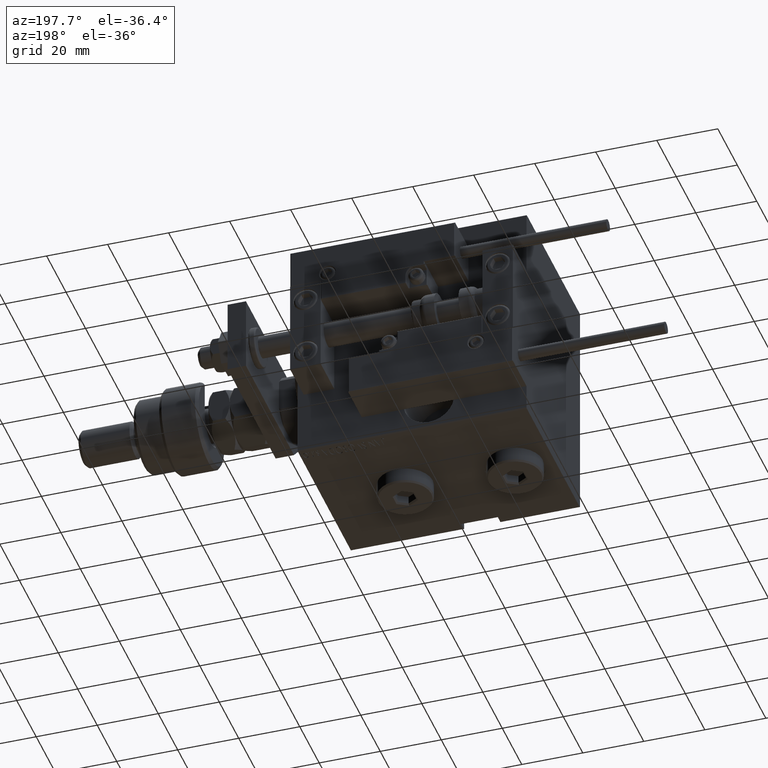
[diagram: clean part render]
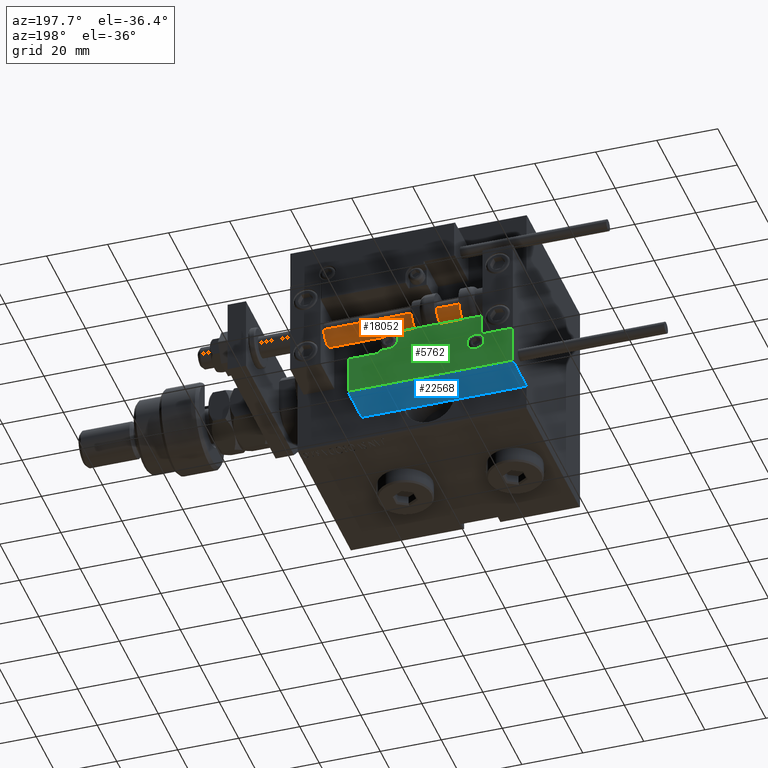
[diagram: same view with three faces highlighted in distinct colors, each labeled with its STEP entity id]
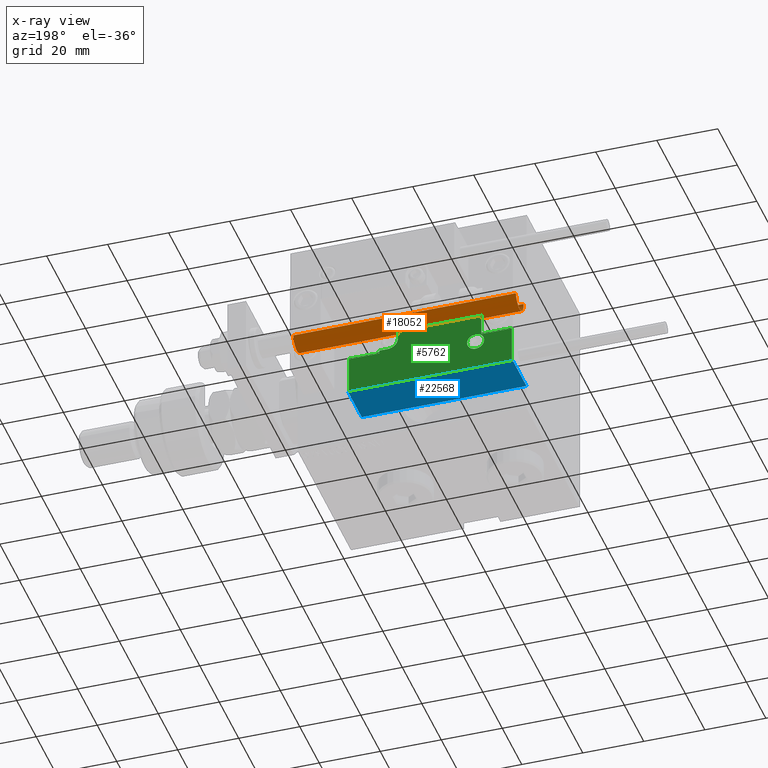
[diagram: x-ray of the same camera — body ghosted, the three highlighted faces saturated]
A machine part, auxiliary view with three faces highlighted in distinct colors.
The next image is the same camera in x-ray (body ghosted, the three faces saturated) — at least one of them is partly hidden behind the body in this view.
Their STEP definitions:

[orange] entity #18052 — the highlighted cylindrical surface (edge-blend (fillet) strip) has radius 4 mm, axis along (1, 0, -0).
#3 = DIRECTION ( 'NONE',  ( -0.000000000000000000, -0.000000000000000000, -1.000000000000000000 ) ) ;
#1456 = DIRECTION ( 'NONE',  ( 1.000000000000000000, 0.000000000000000000, 0.000000000000000000 ) ) ;
#4489 = DIRECTION ( 'NONE',  ( 1.000000000000000000, 0.000000000000000000, 0.000000000000000000 ) ) ;
#10339 = AXIS2_PLACEMENT_3D ( 'NONE', #38742, #18610, #1456 ) ;
#11839 = VERTEX_POINT ( 'NONE', #49486 ) ;
#14315 = CARTESIAN_POINT ( 'NONE',  ( -4.000000000000000000, 0.000000000000000000, 2.000000000000029310 ) ) ;
#15033 = VERTEX_POINT ( 'NONE', #14315 ) ;
#16069 = AXIS2_PLACEMENT_3D ( 'NONE', #52611, #53140, #24621 ) ;
#18052 = ADVANCED_FACE ( 'NONE', ( #31971 ), #40937, .T. ) ;
#18610 = DIRECTION ( 'NONE',  ( 0.000000000000000000, 0.000000000000000000, 1.000000000000000000 ) ) ;
#20895 = EDGE_CURVE ( 'NONE', #11839, #46440, #30188, .T. ) ;
#23227 = DIRECTION ( 'NONE',  ( -0.000000000000000000, -0.000000000000000000, -1.000000000000000000 ) ) ;
#24621 = DIRECTION ( 'NONE',  ( -1.000000000000000000, 0.000000000000000000, 0.000000000000000000 ) ) ;
#25042 = AXIS2_PLACEMENT_3D ( 'NONE', #25456, #38976, #4489 ) ;
#25456 = CARTESIAN_POINT ( 'NONE',  ( 0.000000000000000000, 0.000000000000000000, 2.000000000000029310 ) ) ;
#26416 = ORIENTED_EDGE ( 'NONE', *, *, #47437, .T. ) ;
#26777 = LINE ( 'NONE', #48513, #34521 ) ;
#27693 = CIRCLE ( 'NONE', #10339, 4.000000000000000000 ) ;
#27705 = EDGE_CURVE ( 'NONE', #38232, #15033, #26777, .T. ) ;
#29118 = EDGE_LOOP ( 'NONE', ( #43588, #46846, #26416, #52521 ) ) ;
#30188 = LINE ( 'NONE', #41629, #37765 ) ;
#31971 = FACE_OUTER_BOUND ( 'NONE', #29118, .T. ) ;
#34521 = VECTOR ( 'NONE', #23227, 1000.000000000000000 ) ;
#34880 = CARTESIAN_POINT ( 'NONE',  ( 4.000000000000000000, 4.898587196589412829E-16, 2.000000000000029310 ) ) ;
#37765 = VECTOR ( 'NONE', #3, 1000.000000000000000 ) ;
#38232 = VERTEX_POINT ( 'NONE', #50489 ) ;
#38742 = CARTESIAN_POINT ( 'NONE',  ( 0.000000000000000000, 0.000000000000000000, 75.00000000000000000 ) ) ;
#38976 = DIRECTION ( 'NONE',  ( -0.000000000000000000, -0.000000000000000000, 1.000000000000000000 ) ) ;
#40937 = CYLINDRICAL_SURFACE ( 'NONE', #16069, 4.000000000000000000 ) ;
#41629 = CARTESIAN_POINT ( 'NONE',  ( 4.000000000000000000, 4.898587196589412829E-16, 75.00000000000000000 ) ) ;
#43588 = ORIENTED_EDGE ( 'NONE', *, *, #45255, .F. ) ;
#45255 = EDGE_CURVE ( 'NONE', #11839, #38232, #27693, .T. ) ;
#46440 = VERTEX_POINT ( 'NONE', #34880 ) ;
#46846 = ORIENTED_EDGE ( 'NONE', *, *, #20895, .T. ) ;
#47437 = EDGE_CURVE ( 'NONE', #46440, #15033, #51068, .T. ) ;
#48513 = CARTESIAN_POINT ( 'NONE',  ( -4.000000000000000000, 0.000000000000000000, 75.00000000000000000 ) ) ;
#49486 = CARTESIAN_POINT ( 'NONE',  ( 4.000000000000000000, 4.898587196589412829E-16, 75.00000000000000000 ) ) ;
#50489 = CARTESIAN_POINT ( 'NONE',  ( -4.000000000000000000, 0.000000000000000000, 75.00000000000000000 ) ) ;
#51068 = CIRCLE ( 'NONE', #25042, 4.000000000000000000 ) ;
#52521 = ORIENTED_EDGE ( 'NONE', *, *, #27705, .F. ) ;
#52611 = CARTESIAN_POINT ( 'NONE',  ( 0.000000000000000000, 0.000000000000000000, 75.00000000000000000 ) ) ;
#53140 = DIRECTION ( 'NONE',  ( -0.000000000000000000, -0.000000000000000000, -1.000000000000000000 ) ) ;

[blue] entity #22568 — the highlighted planar face has unit normal (-0, -0, 1).
#1561 = CARTESIAN_POINT ( 'NONE',  ( -26.99999999999993605, 20.00000000000002132, 0.000000000000000000 ) ) ;
#1916 = EDGE_CURVE ( 'NONE', #16763, #21471, #25111, .T. ) ;
#5640 = EDGE_CURVE ( 'NONE', #16763, #8129, #39138, .T. ) ;
#8129 = VERTEX_POINT ( 'NONE', #28379 ) ;
#9667 = ORIENTED_EDGE ( 'NONE', *, *, #5640, .T. ) ;
#13153 = CARTESIAN_POINT ( 'NONE',  ( 27.00000000000006395, 20.00000000000001776, 0.000000000000000000 ) ) ;
#13823 = DIRECTION ( 'NONE',  ( -0.000000000000000000, -0.000000000000000000, -1.000000000000000000 ) ) ;
#15214 = AXIS2_PLACEMENT_3D ( 'NONE', #53206, #29039, #20058 ) ;
#16763 = VERTEX_POINT ( 'NONE', #21060 ) ;
#18731 = CARTESIAN_POINT ( 'NONE',  ( 27.00000000000006395, 20.00000000000001776, 13.70000000000000107 ) ) ;
#20058 = DIRECTION ( 'NONE',  ( 1.000000000000000000, -6.424901762877063495E-17, 0.000000000000000000 ) ) ;
#20887 = VECTOR ( 'NONE', #41700, 1000.000000000000000 ) ;
#21060 = CARTESIAN_POINT ( 'NONE',  ( -26.99999999999993605, 20.00000000000002132, 13.70000000000000107 ) ) ;
#21471 = VERTEX_POINT ( 'NONE', #1561 ) ;
#22568 = ADVANCED_FACE ( 'NONE', ( #49424 ), #41275, .F. ) ;
#24987 = EDGE_LOOP ( 'NONE', ( #32466, #9667, #30080, #34887 ) ) ;
#25111 = LINE ( 'NONE', #42232, #20887 ) ;
#25362 = EDGE_CURVE ( 'NONE', #8129, #29820, #51053, .T. ) ;
#28379 = CARTESIAN_POINT ( 'NONE',  ( 27.00000000000006395, 20.00000000000001776, 13.70000000000000107 ) ) ;
#29039 = DIRECTION ( 'NONE',  ( -6.424901762877063495E-17, -1.000000000000000000, 0.000000000000000000 ) ) ;
#29820 = VERTEX_POINT ( 'NONE', #13153 ) ;
#30080 = ORIENTED_EDGE ( 'NONE', *, *, #25362, .T. ) ;
#31839 = CARTESIAN_POINT ( 'NONE',  ( 27.00000000000006395, 20.00000000000001776, 0.000000000000000000 ) ) ;
#32466 = ORIENTED_EDGE ( 'NONE', *, *, #1916, .F. ) ;
#34057 = VECTOR ( 'NONE', #42949, 1000.000000000000000 ) ;
#34887 = ORIENTED_EDGE ( 'NONE', *, *, #36660, .T. ) ;
#36660 = EDGE_CURVE ( 'NONE', #29820, #21471, #44067, .T. ) ;
#39138 = LINE ( 'NONE', #18731, #34057 ) ;
#41275 = PLANE ( 'NONE',  #15214 ) ;
#41700 = DIRECTION ( 'NONE',  ( -0.000000000000000000, -0.000000000000000000, -1.000000000000000000 ) ) ;
#42232 = CARTESIAN_POINT ( 'NONE',  ( -26.99999999999993605, 20.00000000000002132, 14.00000000000000000 ) ) ;
#42949 = DIRECTION ( 'NONE',  ( 1.000000000000000000, -6.424901762877063495E-17, -0.000000000000000000 ) ) ;
#44067 = LINE ( 'NONE', #31839, #44304 ) ;
#44304 = VECTOR ( 'NONE', #48160, 1000.000000000000000 ) ;
#47264 = CARTESIAN_POINT ( 'NONE',  ( 27.00000000000006395, 20.00000000000001776, 14.00000000000000000 ) ) ;
#48160 = DIRECTION ( 'NONE',  ( -1.000000000000000000, 6.424901762877062263E-17, 0.000000000000000000 ) ) ;
#49424 = FACE_OUTER_BOUND ( 'NONE', #24987, .T. ) ;
#50055 = VECTOR ( 'NONE', #13823, 1000.000000000000000 ) ;
#51053 = LINE ( 'NONE', #47264, #50055 ) ;
#53206 = CARTESIAN_POINT ( 'NONE',  ( 27.00000000000006395, 20.00000000000001776, 14.00000000000000000 ) ) ;

[green] entity #5762 — the highlighted planar face has unit normal (-0, 1, 0).
#51 = EDGE_CURVE ( 'NONE', #18546, #26244, #39093, .T. ) ;
#296 = LINE ( 'NONE', #53052, #18493 ) ;
#1011 = EDGE_CURVE ( 'NONE', #52321, #14610, #41695, .T. ) ;
#1579 = CARTESIAN_POINT ( 'NONE',  ( 11.00000000000000000, 0.3000000000000032085, 14.00000000000000000 ) ) ;
#1860 = CARTESIAN_POINT ( 'NONE',  ( 10.69999999999999929, 0.3000000000000032085, 14.00000000000000000 ) ) ;
#1955 = LINE ( 'NONE', #19093, #35131 ) ;
#3882 = ORIENTED_EDGE ( 'NONE', *, *, #12181, .T. ) ;
#4709 = LINE ( 'NONE', #17501, #10125 ) ;
#5699 = VERTEX_POINT ( 'NONE', #1860 ) ;
#5762 = ADVANCED_FACE ( 'NONE', ( #32304, #24685 ), #27697, .T. ) ;
#7019 = ORIENTED_EDGE ( 'NONE', *, *, #34144, .T. ) ;
#7040 = EDGE_CURVE ( 'NONE', #48743, #18546, #35204, .T. ) ;
#7802 = LINE ( 'NONE', #49414, #44101 ) ;
#8941 = CARTESIAN_POINT ( 'NONE',  ( 26.70000000000006324, 19.70000000000001705, 14.00000000000000000 ) ) ;
#9074 = ORIENTED_EDGE ( 'NONE', *, *, #24752, .T. ) ;
#9107 = VERTEX_POINT ( 'NONE', #39689 ) ;
#9279 = ORIENTED_EDGE ( 'NONE', *, *, #22301, .T. ) ;
#9728 = EDGE_CURVE ( 'NONE', #40894, #17472, #25591, .T. ) ;
#10125 = VECTOR ( 'NONE', #13695, 1000.000000000000000 ) ;
#10394 = VECTOR ( 'NONE', #37281, 1000.000000000000000 ) ;
#10706 = EDGE_CURVE ( 'NONE', #14610, #40894, #296, .T. ) ;
#11255 = DIRECTION ( 'NONE',  ( 1.000000000000000000, 5.782411586589357639E-16, -0.000000000000000000 ) ) ;
#11279 = CARTESIAN_POINT ( 'NONE',  ( 27.00000000000006395, 7.300000000000007816, 14.00000000000000000 ) ) ;
#11478 = ORIENTED_EDGE ( 'NONE', *, *, #41040, .T. ) ;
#11512 = ORIENTED_EDGE ( 'NONE', *, *, #51, .T. ) ;
#11629 = CARTESIAN_POINT ( 'NONE',  ( 0.000000000000000000, 0.000000000000000000, 14.00000000000000000 ) ) ;
#12181 = EDGE_CURVE ( 'NONE', #9107, #36259, #41124, .T. ) ;
#12311 = ORIENTED_EDGE ( 'NONE', *, *, #20685, .T. ) ;
#13695 = DIRECTION ( 'NONE',  ( 0.000000000000000000, -1.000000000000000000, 0.000000000000000000 ) ) ;
#14610 = VERTEX_POINT ( 'NONE', #8941 ) ;
#16341 = CARTESIAN_POINT ( 'NONE',  ( 16.69999999999999929, 7.000000000000009770, 14.00000000000000000 ) ) ;
#17137 = ORIENTED_EDGE ( 'NONE', *, *, #43667, .T. ) ;
#17472 = VERTEX_POINT ( 'NONE', #23290 ) ;
#17501 = CARTESIAN_POINT ( 'NONE',  ( -16.69999999999999218, 3.252606517456513302E-15, 14.00000000000000000 ) ) ;
#18493 = VECTOR ( 'NONE', #33486, 1000.000000000000000 ) ;
#18546 = VERTEX_POINT ( 'NONE', #31328 ) ;
#19093 = CARTESIAN_POINT ( 'NONE',  ( -16.99999999999999289, 7.300000000000003375, 14.00000000000000000 ) ) ;
#19606 = ORIENTED_EDGE ( 'NONE', *, *, #10706, .T. ) ;
#19881 = AXIS2_PLACEMENT_3D ( 'NONE', #46575, #26446, #33526 ) ;
#20685 = EDGE_CURVE ( 'NONE', #17472, #40884, #1955, .T. ) ;
#20849 = DIRECTION ( 'NONE',  ( 1.000000000000000000, 0.000000000000000000, 0.000000000000000000 ) ) ;
#21769 = DIRECTION ( 'NONE',  ( -8.006416042969869188E-16, -1.000000000000000000, 0.000000000000000000 ) ) ;
#21998 = CARTESIAN_POINT ( 'NONE',  ( -16.69999999999999218, 7.300000000000003375, 14.00000000000000000 ) ) ;
#22301 = EDGE_CURVE ( 'NONE', #38426, #5699, #30165, .T. ) ;
#22721 = DIRECTION ( 'NONE',  ( 1.000000000000000000, -1.734723475976796001E-16, 0.000000000000000000 ) ) ;
#23018 = VECTOR ( 'NONE', #43205, 1000.000000000000000 ) ;
#23290 = CARTESIAN_POINT ( 'NONE',  ( -26.69999999999994600, 7.300000000000005151, 14.00000000000000000 ) ) ;
#23721 = CARTESIAN_POINT ( 'NONE',  ( 10.69999999999999929, 3.000000000000003109, 14.00000000000000000 ) ) ;
#24685 = FACE_OUTER_BOUND ( 'NONE', #49729, .T. ) ;
#24752 = EDGE_CURVE ( 'NONE', #26244, #52321, #39583, .T. ) ;
#24867 = VECTOR ( 'NONE', #22721, 1000.000000000000000 ) ;
#24939 = CARTESIAN_POINT ( 'NONE',  ( -14.79999999999994920, 9.800000000000004263, 14.00000000000000000 ) ) ;
#25084 = EDGE_CURVE ( 'NONE', #40884, #38426, #4709, .T. ) ;
#25591 = LINE ( 'NONE', #38100, #47139 ) ;
#26244 = VERTEX_POINT ( 'NONE', #26963 ) ;
#26446 = DIRECTION ( 'NONE',  ( 0.000000000000000000, -0.000000000000000000, -1.000000000000000000 ) ) ;
#26459 = ORIENTED_EDGE ( 'NONE', *, *, #9728, .T. ) ;
#26963 = CARTESIAN_POINT ( 'NONE',  ( 16.69999999999999929, 7.300000000000009592, 14.00000000000000000 ) ) ;
#27697 = PLANE ( 'NONE',  #49704 ) ;
#28226 = DIRECTION ( 'NONE',  ( 1.000000000000000000, 0.000000000000000000, 0.000000000000000000 ) ) ;
#28381 = CIRCLE ( 'NONE', #40580, 3.299999999999997158 ) ;
#30165 = LINE ( 'NONE', #1579, #23018 ) ;
#31328 = CARTESIAN_POINT ( 'NONE',  ( 16.69999999999999929, 6.300000000000003375, 14.00000000000000000 ) ) ;
#32304 = FACE_BOUND ( 'NONE', #33738, .T. ) ;
#33117 = VECTOR ( 'NONE', #11255, 1000.000000000000000 ) ;
#33486 = DIRECTION ( 'NONE',  ( -1.000000000000000000, 6.424901762877063495E-17, -0.000000000000000000 ) ) ;
#33526 = DIRECTION ( 'NONE',  ( 1.000000000000000000, 0.000000000000000000, 0.000000000000000000 ) ) ;
#33738 = EDGE_LOOP ( 'NONE', ( #3882, #7019 ) ) ;
#34144 = EDGE_CURVE ( 'NONE', #36259, #9107, #43349, .T. ) ;
#34553 = ORIENTED_EDGE ( 'NONE', *, *, #1011, .T. ) ;
#34769 = CARTESIAN_POINT ( 'NONE',  ( -26.69999999999993534, 19.70000000000002061, 14.00000000000000000 ) ) ;
#35131 = VECTOR ( 'NONE', #40040, 1000.000000000000000 ) ;
#35204 = LINE ( 'NONE', #51771, #33117 ) ;
#36259 = VERTEX_POINT ( 'NONE', #43333 ) ;
#37068 = DIRECTION ( 'NONE',  ( 0.000000000000000000, 1.000000000000000000, -0.000000000000000000 ) ) ;
#37176 = DIRECTION ( 'NONE',  ( 0.000000000000000000, -0.000000000000000000, -1.000000000000000000 ) ) ;
#37281 = DIRECTION ( 'NONE',  ( 9.912705577010318647E-16, 1.000000000000000000, 0.000000000000000000 ) ) ;
#38100 = CARTESIAN_POINT ( 'NONE',  ( -26.69999999999994600, 7.000000000000005329, 14.00000000000000000 ) ) ;
#38426 = VERTEX_POINT ( 'NONE', #49361 ) ;
#39093 = LINE ( 'NONE', #16341, #10394 ) ;
#39583 = LINE ( 'NONE', #11279, #24867 ) ;
#39689 = CARTESIAN_POINT ( 'NONE',  ( -11.99999999999994849, 9.800000000000004263, 14.00000000000000000 ) ) ;
#40040 = DIRECTION ( 'NONE',  ( 1.000000000000000000, -1.734723475976815230E-16, 0.000000000000000000 ) ) ;
#40580 = AXIS2_PLACEMENT_3D ( 'NONE', #41806, #45877, #49692 ) ;
#40884 = VERTEX_POINT ( 'NONE', #21998 ) ;
#40894 = VERTEX_POINT ( 'NONE', #34769 ) ;
#41040 = EDGE_CURVE ( 'NONE', #46679, #48743, #28381, .T. ) ;
#41124 = CIRCLE ( 'NONE', #41978, 2.800000000000000266 ) ;
#41695 = LINE ( 'NONE', #46309, #47780 ) ;
#41806 = CARTESIAN_POINT ( 'NONE',  ( 13.99999999999999822, 3.000000000000002665, 14.00000000000000000 ) ) ;
#41978 = AXIS2_PLACEMENT_3D ( 'NONE', #24939, #37176, #20849 ) ;
#43205 = DIRECTION ( 'NONE',  ( 1.000000000000000000, -0.000000000000000000, 0.000000000000000000 ) ) ;
#43333 = CARTESIAN_POINT ( 'NONE',  ( -17.59999999999994813, 9.800000000000004263, 14.00000000000000000 ) ) ;
#43349 = CIRCLE ( 'NONE', #19881, 2.800000000000000266 ) ;
#43667 = EDGE_CURVE ( 'NONE', #5699, #46679, #7802, .T. ) ;
#44101 = VECTOR ( 'NONE', #52663, 1000.000000000000000 ) ;
#44866 = CARTESIAN_POINT ( 'NONE',  ( 26.70000000000006324, 7.300000000000007816, 14.00000000000000000 ) ) ;
#45524 = CARTESIAN_POINT ( 'NONE',  ( 13.99999999999999822, 6.300000000000001599, 14.00000000000000000 ) ) ;
#45877 = DIRECTION ( 'NONE',  ( 0.000000000000000000, -0.000000000000000000, -1.000000000000000000 ) ) ;
#46309 = CARTESIAN_POINT ( 'NONE',  ( 26.70000000000006324, 20.00000000000001776, 14.00000000000000000 ) ) ;
#46575 = CARTESIAN_POINT ( 'NONE',  ( -14.79999999999994920, 9.800000000000004263, 14.00000000000000000 ) ) ;
#46679 = VERTEX_POINT ( 'NONE', #23721 ) ;
#47139 = VECTOR ( 'NONE', #21769, 1000.000000000000000 ) ;
#47780 = VECTOR ( 'NONE', #37068, 1000.000000000000000 ) ;
#48363 = DIRECTION ( 'NONE',  ( -0.000000000000000000, 0.000000000000000000, 1.000000000000000000 ) ) ;
#48743 = VERTEX_POINT ( 'NONE', #45524 ) ;
#49361 = CARTESIAN_POINT ( 'NONE',  ( -16.69999999999999218, 0.3000000000000032085, 14.00000000000000000 ) ) ;
#49414 = CARTESIAN_POINT ( 'NONE',  ( 10.69999999999999929, 3.000000000000003109, 14.00000000000000000 ) ) ;
#49692 = DIRECTION ( 'NONE',  ( 1.000000000000000000, 0.000000000000000000, 0.000000000000000000 ) ) ;
#49704 = AXIS2_PLACEMENT_3D ( 'NONE', #11629, #48363, #28226 ) ;
#49729 = EDGE_LOOP ( 'NONE', ( #52491, #9279, #17137, #11478, #53095, #11512, #9074, #34553, #19606, #26459, #12311 ) ) ;
#51771 = CARTESIAN_POINT ( 'NONE',  ( 17.00000000000000000, 6.300000000000003375, 14.00000000000000000 ) ) ;
#52321 = VERTEX_POINT ( 'NONE', #44866 ) ;
#52491 = ORIENTED_EDGE ( 'NONE', *, *, #25084, .T. ) ;
#52663 = DIRECTION ( 'NONE',  ( -0.000000000000000000, 1.000000000000000000, -0.000000000000000000 ) ) ;
#53052 = CARTESIAN_POINT ( 'NONE',  ( -26.99999999999993605, 19.70000000000002061, 14.00000000000000000 ) ) ;
#53095 = ORIENTED_EDGE ( 'NONE', *, *, #7040, .T. ) ;